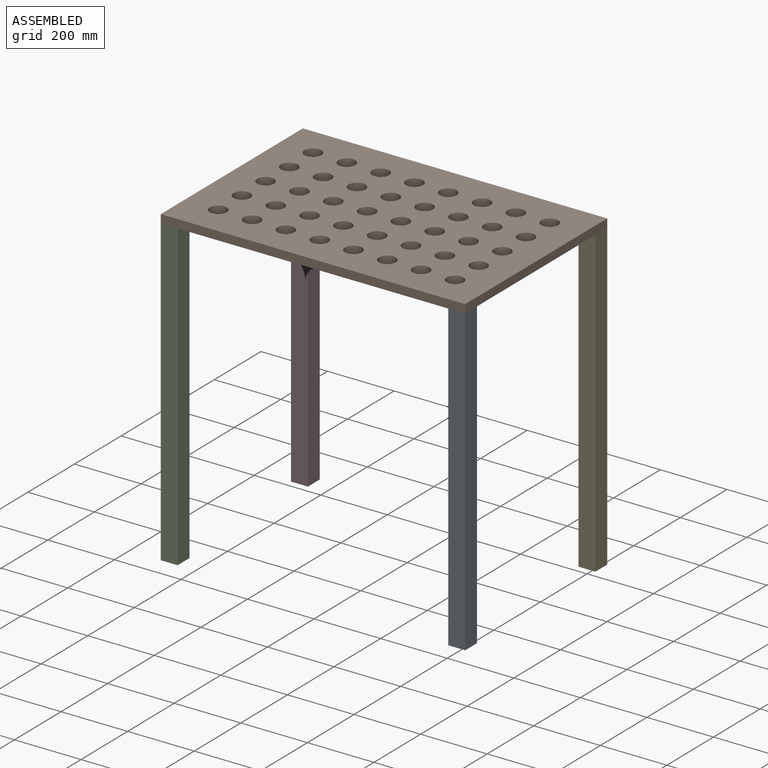
[diagram: assembled view]
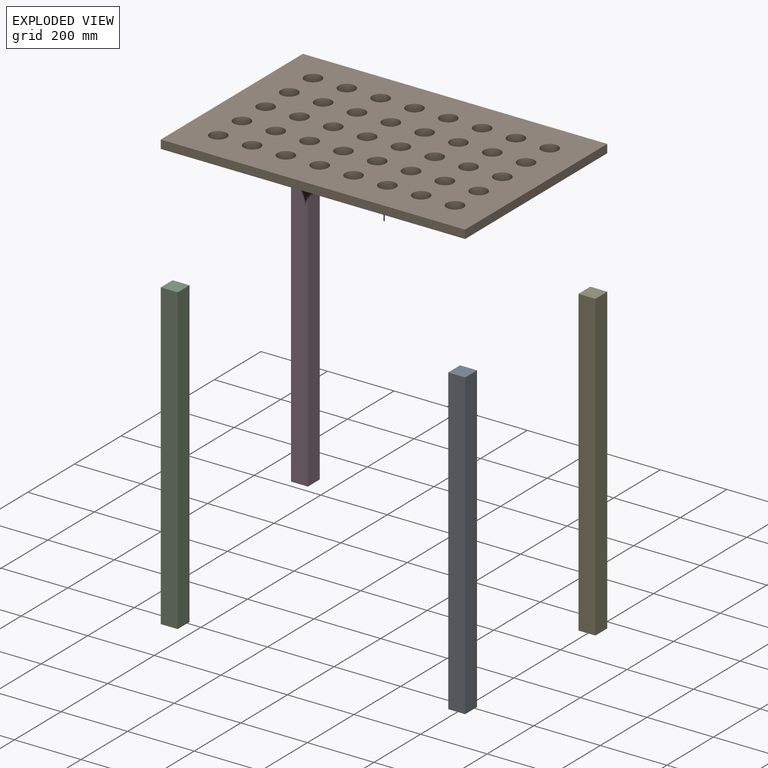
[diagram: exploded view]
GUIDED TOUR — MATED ASSEMBLY (Onshape document d99c5bfcca4524edbeebe9d9, AutoMate assembly d99c5bfcca4524edbeebe9d9_667a4e74a6654eff3f377915_4417dffce7de8047f173473a_default)

This assembly has 5 components, labeled P0..P4 below (a component is one placed occurrence of a part; the same part can appear more than once), held together by 4 mates. A mate is a constraint between two components; its type names the relative motion it leaves free:
  FASTENED — locks the two components together rigidly (no relative motion).
Axis/direction vectors are unit vectors and 'through' points are millimeter coordinates, both in the assembly's world frame.

MATES
  1. FASTENED "Fastened 2": P2 <-> P1, direction (0.000, 0.000, 1.000) through (-264.62, -79.75, 223.32) mm
  2. FASTENED "Fastened 4": P4 <-> P1, direction (0.000, 0.000, 1.000) through (649.78, 529.85, 223.32) mm
  3. FASTENED "Fastened 3": P3 <-> P1, direction (0.000, 0.000, 1.000) through (-264.62, 529.85, 223.32) mm
  4. FASTENED "Fastened 1": P0 <-> P1, direction (0.000, 0.000, 1.000) through (649.78, -79.75, 223.32) mm

ASSEMBLY ORDER
  1. P3 — the base component [order verified]
  2. P2 [order verified]
  3. P0 [order verified]
  4. P4 [order verified]
  5. P1 [order verified]
Order-tag legend:
  [order verified] — this step's position reverses a verified removal order: the component was checked to insert without passing through the ones already placed.

Of the 5 components, 5 carry the full construction recipe — the FeatureScript program that regenerates the part's solid from scratch; the rest are supplied as boundary geometry only.
Each toured component is shown spotlighted twice — in the assembled view, then in the exploded view, where a leader line traces a displaced component back to its assembled socket (saturated green if recipe-attached, orange if geometry-only; every other component desaturated gray) — followed by its recipe or geometry summary and the mates that hold it.
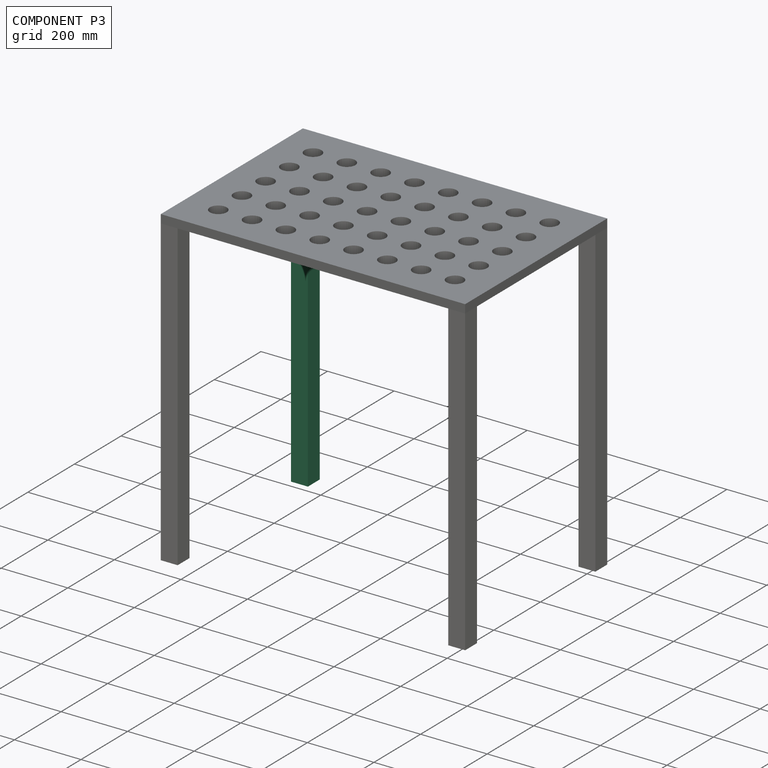
[diagram: component P3 — assembled]
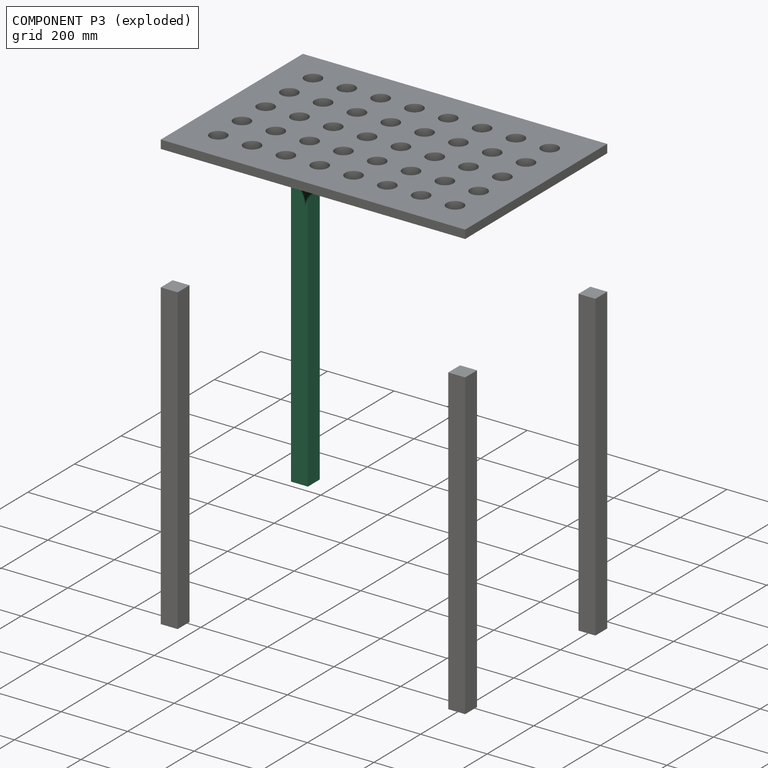
[diagram: component P3 — exploded]
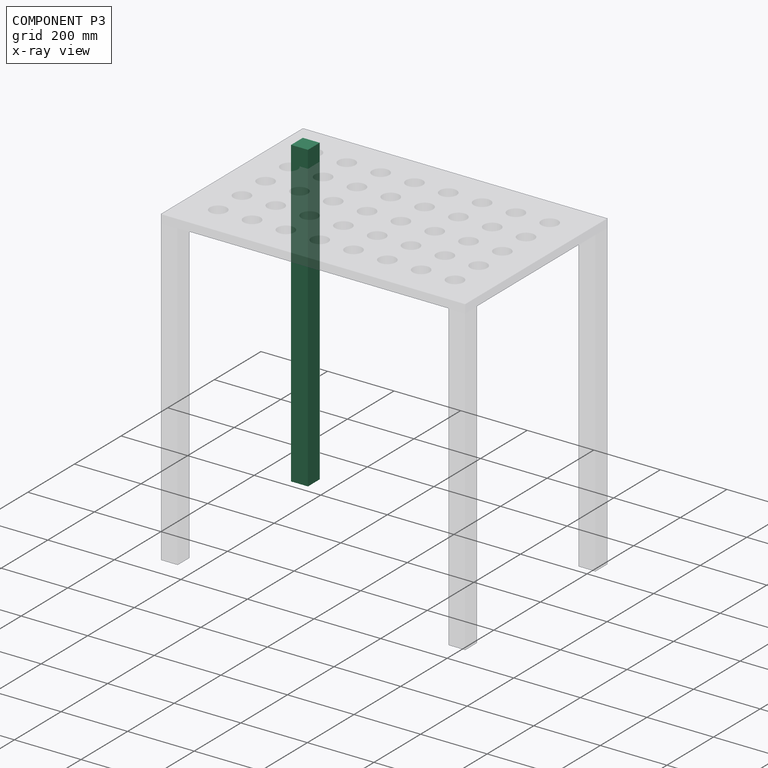
[diagram: component P3 — x-ray view]
COMPONENT P3 — same part as P0 (CADFS 00595427); its construction recipe is shown at P0.
Held by: FASTENED mate "Fastened 3" to P1.
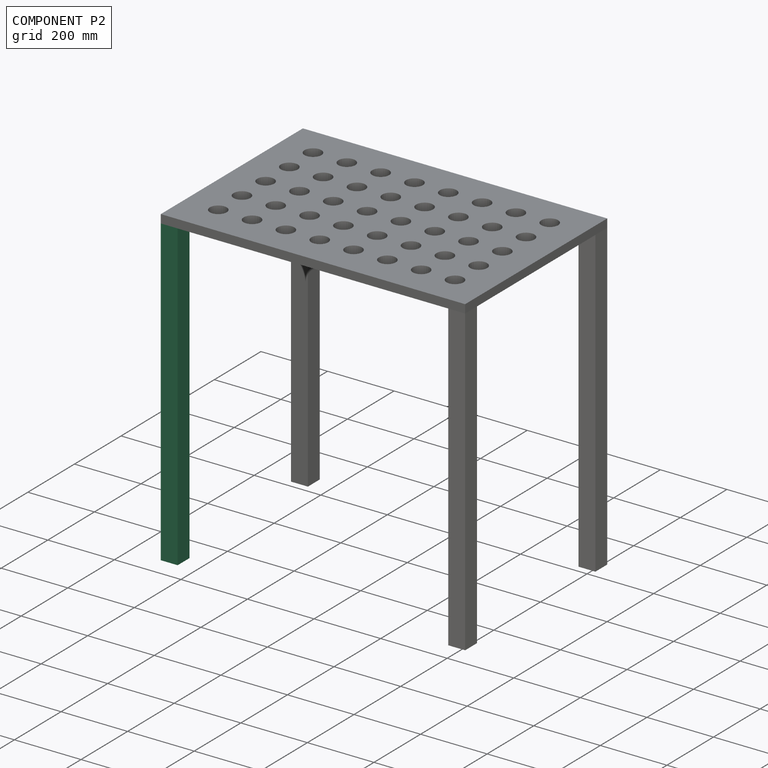
[diagram: component P2 — assembled]
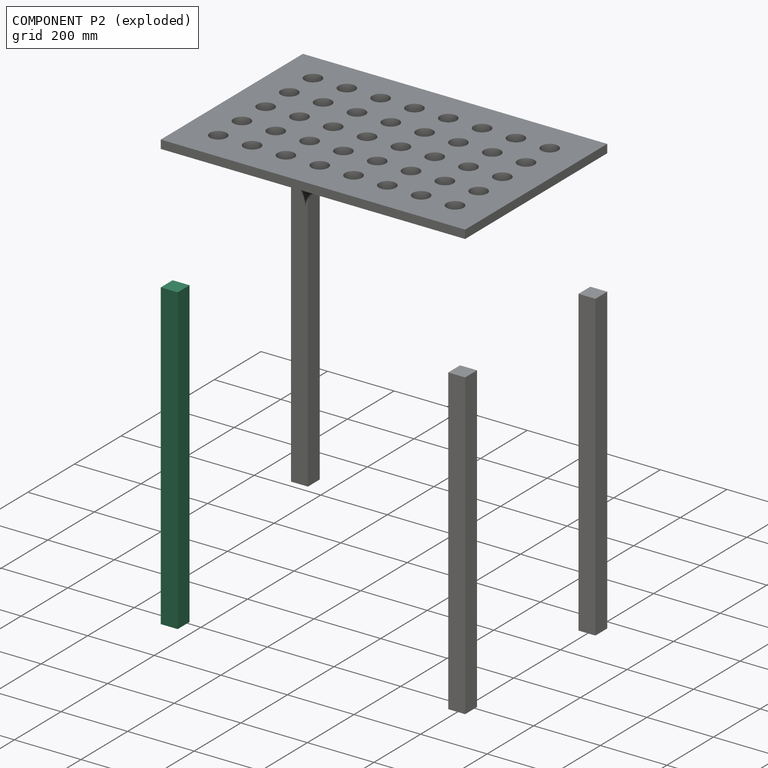
[diagram: component P2 — exploded]
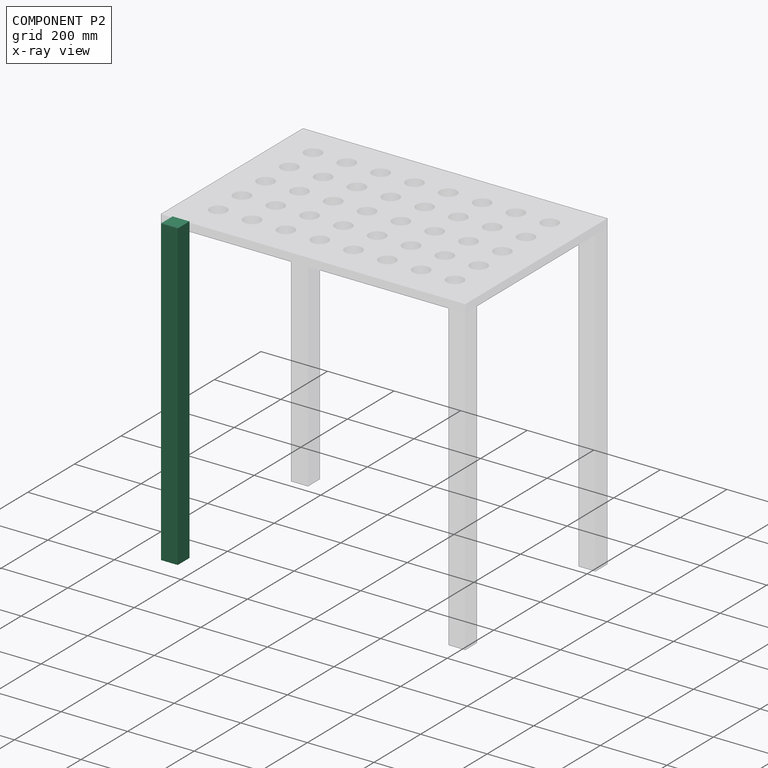
[diagram: component P2 — x-ray view]
COMPONENT P2 — same part as P0 (CADFS 00595427); its construction recipe is shown at P0.
Held by: FASTENED mate "Fastened 2" to P1.
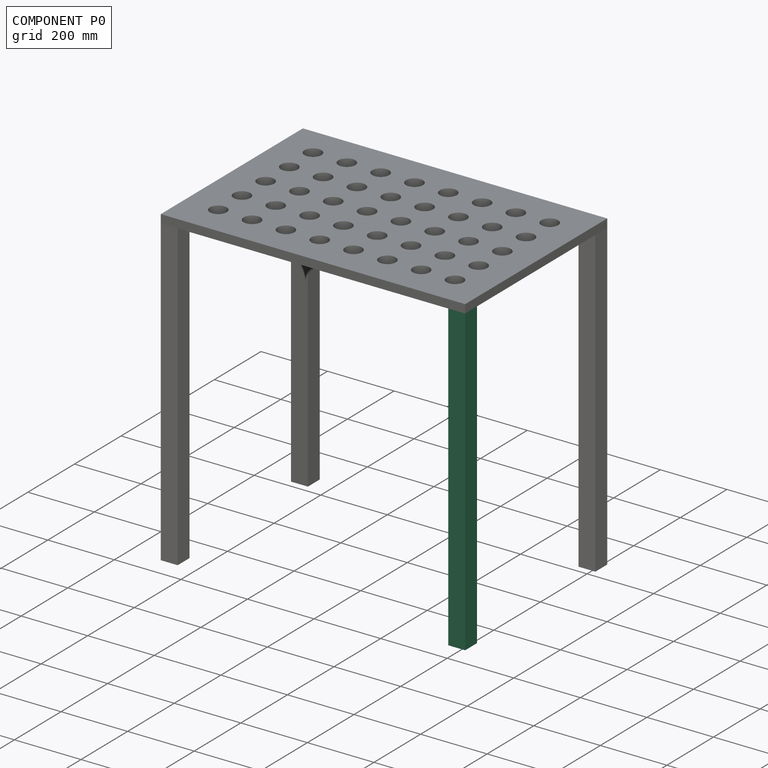
[diagram: component P0 — assembled]
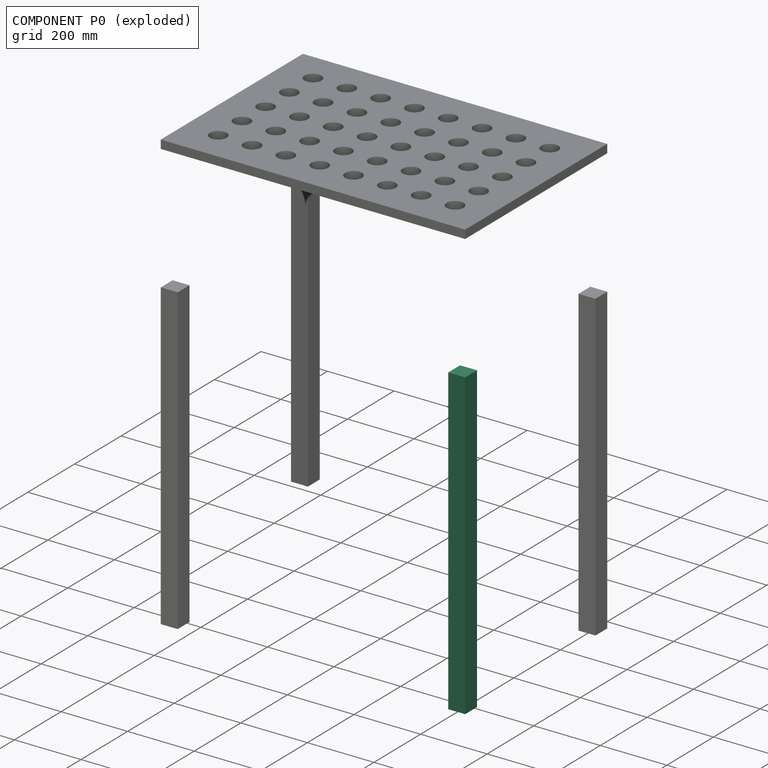
[diagram: component P0 — exploded]
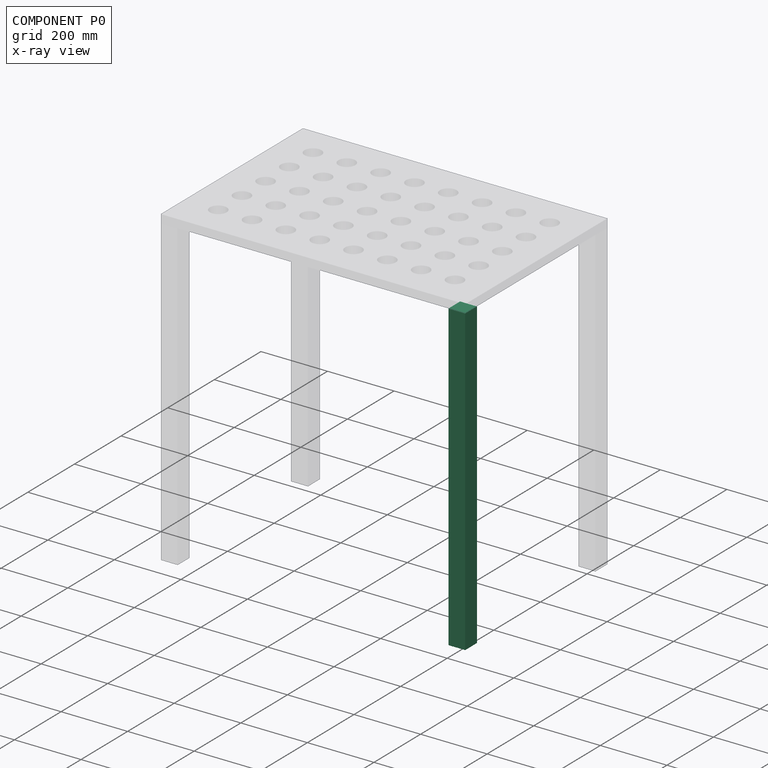
[diagram: component P0 — x-ray view]
COMPONENT P0 — recipe-attached (CADFS 00595427, mesh-verified: the recipe's output STEP matches this component's geometry to below the mesh-comparison resolution (tessellation chordal tolerance ~1.38 mm)).
Held by: FASTENED mate "Fastened 1" to P1.
Construction recipe (FeatureScript — the CAD program that rebuilds this solid; sketch coordinates are in the units given by the * unit suffixes, e.g. mm):

FeatureScript 1511;
import(path : "onshape/std/geometry.fs", version : "1511.0");
import(path : "onshape/std/common.fs", version : "1511.0");
const mm = millimeter;
const VERTEX = EntityType.VERTEX;
const EDGE = EntityType.EDGE;
const FACE = EntityType.FACE;
const BODY = EntityType.BODY;
function v(x, y){return vector(x, y);}
function OD(order){return orderDisambiguation(order);}
function OSD(set){return originalSetDisambiguation(set);}
function TD(topology){return topologyDisambiguation(topology);}
function TDD(query){return trueDependencyDisambiguation(query);}
function sQuery(a, b, c) {return sketchEntityQuery(a, b, c);}

annotation { "Feature Type Name" : "Feature", "Feature Type Description" : "" }
export const myFeature = defineFeature(function(context is Context, id is Id, definition is map)
    precondition{}
    {
        {
            var Q0;
            Q0=qCreatedBy(makeId("Top.planeOp"),FACE);
            var sketch = newSketch(context, id + "F0", { "sketchPlane" : qUnion([Q0])});
            skLineSegment(sketch, "E0.bottom", {"start": v(-203.2, -203.6) * mm, "end": v(-254, -203.6) * mm});
            skLineSegment(sketch, "E0.top", {"start": v(-203.2, -254.4) * mm, "end": v(-254, -254.4) * mm});
            skLineSegment(sketch, "E0.left", {"start": v(-203.2, -203.6) * mm, "end": v(-203.2, -254.4) * mm});
            skLineSegment(sketch, "E0.right", {"start": v(-254, -203.6) * mm, "end": v(-254, -254.4) * mm});
            skSolve(sketch);
        }
        {
            var Q0;
            Q0=makeQuery(id+"F0.imprint","IMPRINT",FACE,{"disambiguationData":[TD([[makeQuery(id+"F0.imprint","IMPRINT",EDGE,{"derivedFrom":sQuery(id+"F0.wireOp",EDGE,"E0.bottom")}),1.0]])]});
            extrude(context, id + "F1", {"entities" : qUnion([Q0]), "depth" : 914.4 * mm, "offsetDistance" : 25.4 * mm});
        }
    });
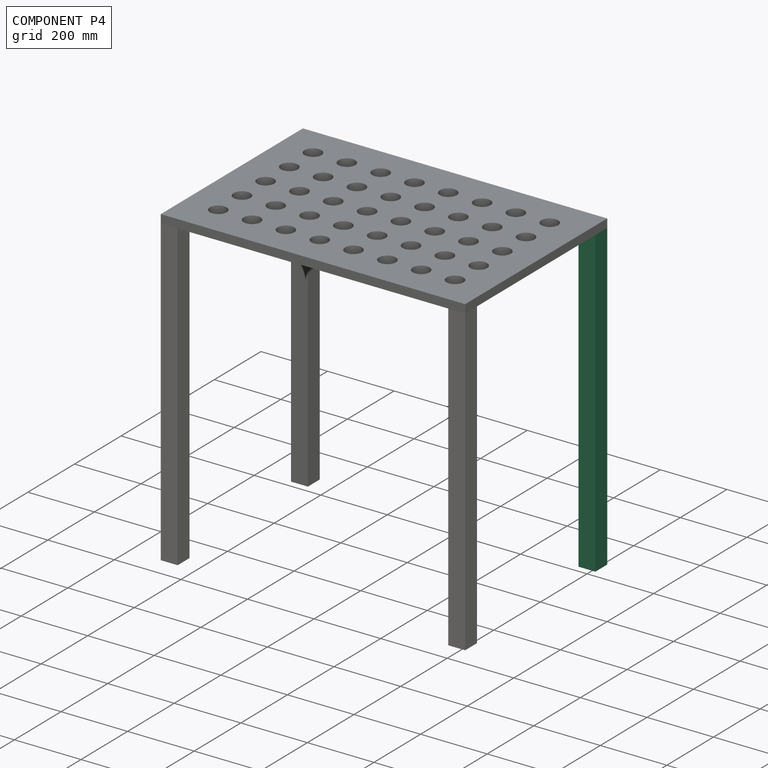
[diagram: component P4 — assembled]
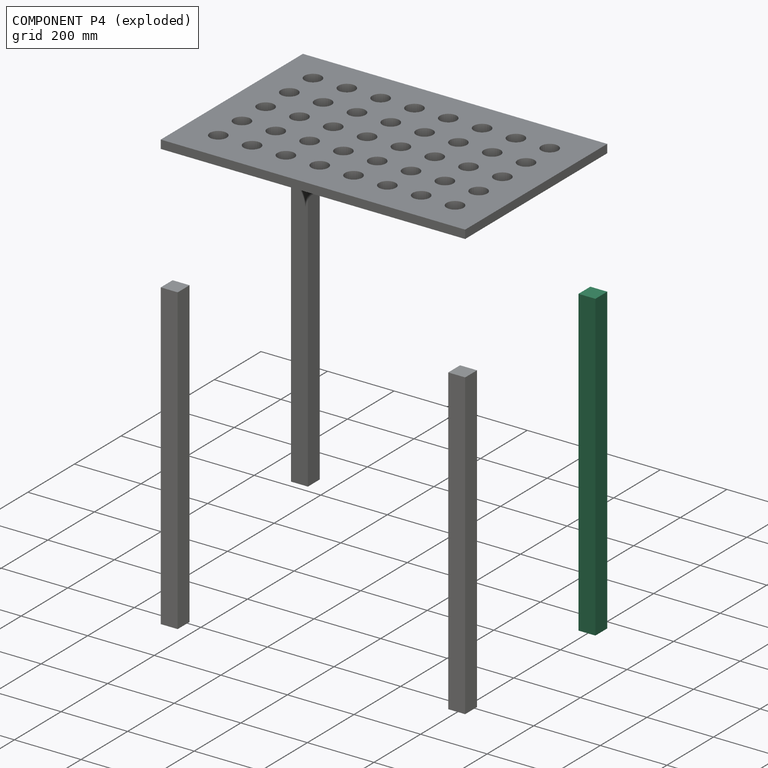
[diagram: component P4 — exploded]
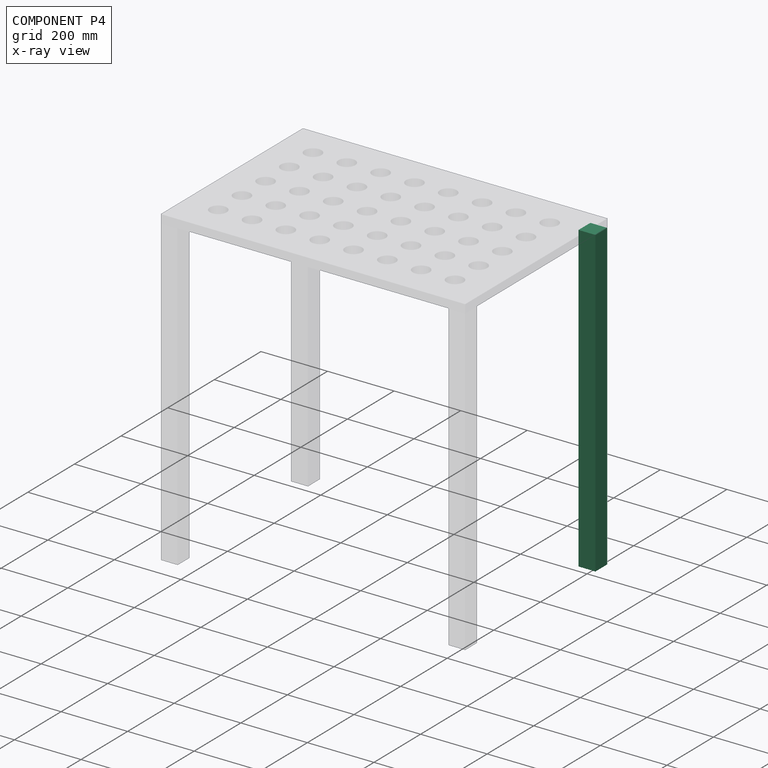
[diagram: component P4 — x-ray view]
COMPONENT P4 — same part as P0 (CADFS 00595427); its construction recipe is shown at P0.
Held by: FASTENED mate "Fastened 4" to P1.
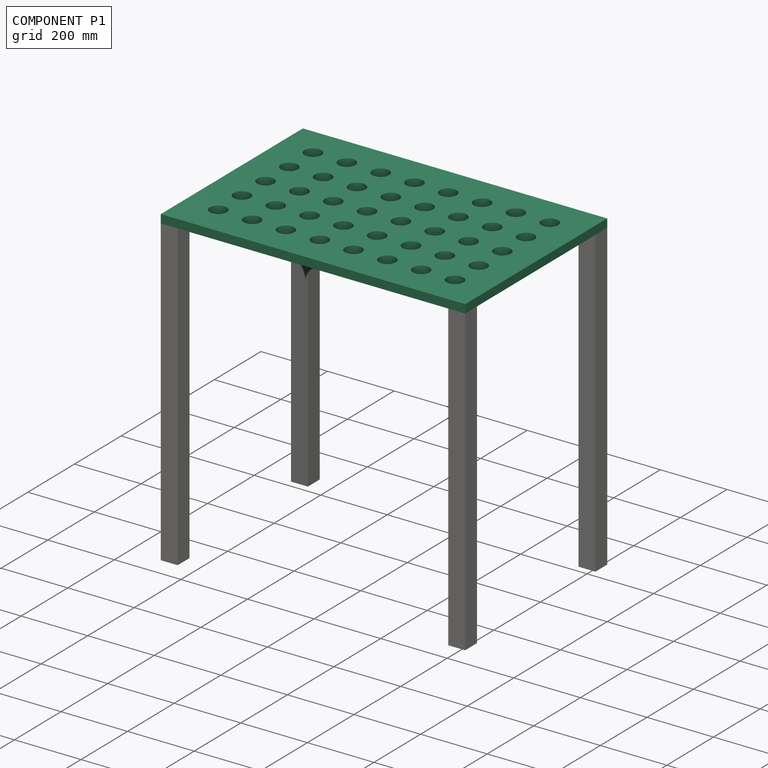
[diagram: component P1 — assembled]
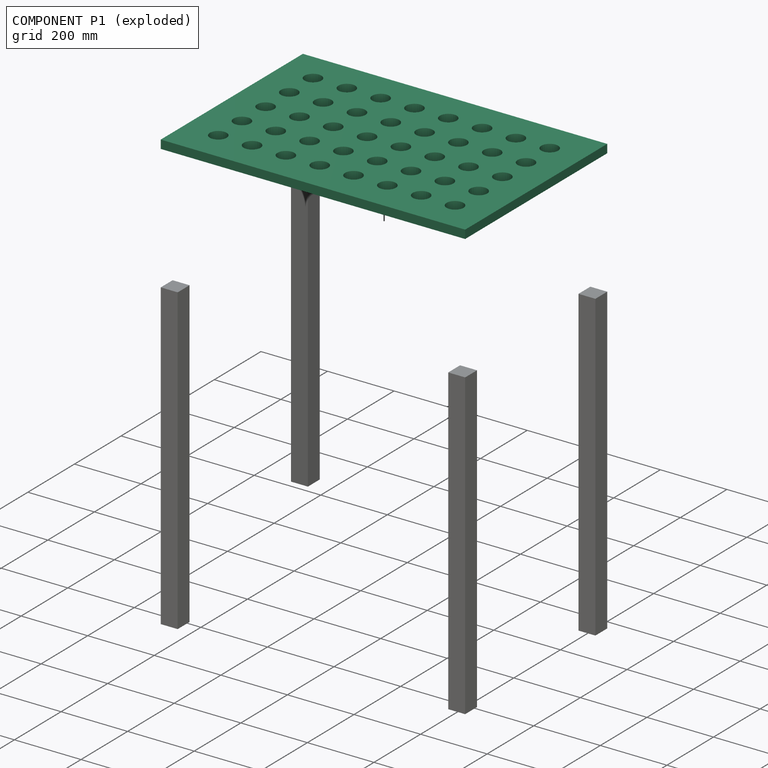
[diagram: component P1 — exploded]
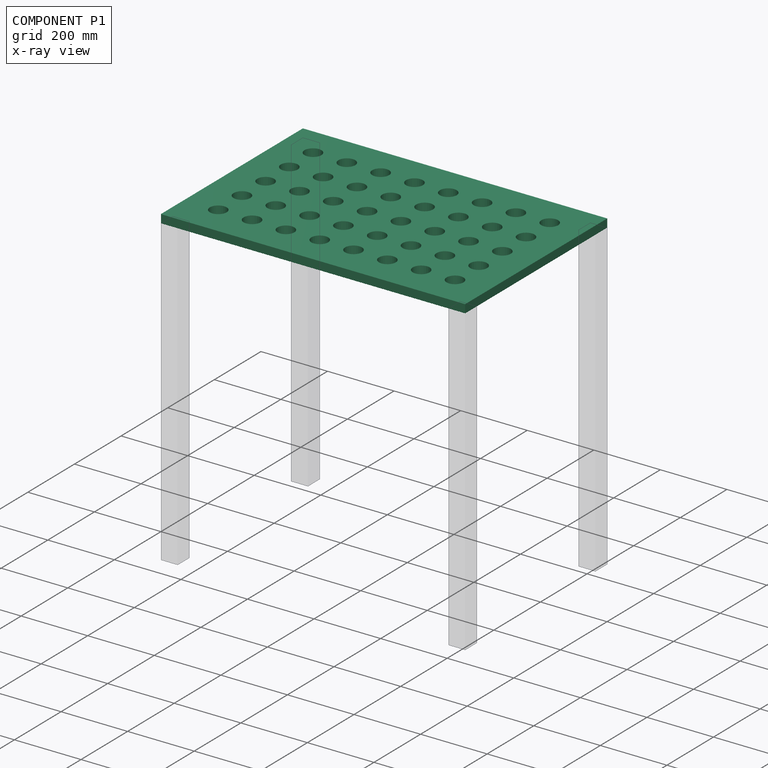
[diagram: component P1 — x-ray view]
COMPONENT P1 — recipe-attached (CADFS 00595426, mesh-verified: the recipe's output STEP matches this component's geometry to below the mesh-comparison resolution (tessellation chordal tolerance ~1.65 mm)).
Held by: FASTENED mate "Fastened 2" to P2; FASTENED mate "Fastened 4" to P4; FASTENED mate "Fastened 3" to P3; FASTENED mate "Fastened 1" to P0.
Construction recipe (FeatureScript — the CAD program that rebuilds this solid; sketch coordinates are in the units given by the * unit suffixes, e.g. mm):

FeatureScript 1511;
import(path : "onshape/std/geometry.fs", version : "1511.0");
import(path : "onshape/std/common.fs", version : "1511.0");
const mm = millimeter;
const VERTEX = EntityType.VERTEX;
const EDGE = EntityType.EDGE;
const FACE = EntityType.FACE;
const BODY = EntityType.BODY;
function v(x, y){return vector(x, y);}
function OD(order){return orderDisambiguation(order);}
function OSD(set){return originalSetDisambiguation(set);}
function TD(topology){return topologyDisambiguation(topology);}
function TDD(query){return trueDependencyDisambiguation(query);}
function sQuery(a, b, c) {return sketchEntityQuery(a, b, c);}

annotation { "Feature Type Name" : "Feature", "Feature Type Description" : "" }
export const myFeature = defineFeature(function(context is Context, id is Id, definition is map)
    precondition{}
    {
        {
            var Q0;
            Q0=qCreatedBy(makeId("Top.planeOp"),FACE);
            var sketch = newSketch(context, id + "F0", { "sketchPlane" : qUnion([Q0])});
            skLineSegment(sketch, "E0.bottom", {"start": v(812.8, 482.96) * mm, "end": v(-101.6, 482.96) * mm});
            skLineSegment(sketch, "E0.top", {"start": v(812.8, -126.64) * mm, "end": v(-101.6, -126.64) * mm});
            skLineSegment(sketch, "E0.left", {"start": v(812.8, 482.96) * mm, "end": v(812.8, -126.64) * mm});
            skLineSegment(sketch, "E0.right", {"start": v(-101.6, 482.96) * mm, "end": v(-101.6, -126.64) * mm});
            skCircle(sketch, "E1", {"center": v(0, 381.36) * mm, "radius": 25.4 * mm});
            skCircle(sketch, "E2", {"center": v(101.6, 381.36) * mm, "radius": 25.4 * mm});
            skCircle(sketch, "E3", {"center": v(203.2, 381.36) * mm, "radius": 25.4 * mm});
            skCircle(sketch, "E4", {"center": v(304.8, 381.36) * mm, "radius": 25.4 * mm});
            skCircle(sketch, "E5", {"center": v(406.4, 381.36) * mm, "radius": 25.4 * mm});
            skCircle(sketch, "E6", {"center": v(508, 381.36) * mm, "radius": 25.4 * mm});
            skCircle(sketch, "E7", {"center": v(609.6, 381.36) * mm, "radius": 25.4 * mm});
            skCircle(sketch, "E8", {"center": v(711.2, 381.36) * mm, "radius": 25.4 * mm});
            skCircle(sketch, "E9", {"center": v(0, 279.76) * mm, "radius": 25.4 * mm});
            skCircle(sketch, "E10", {"center": v(0, 178.16) * mm, "radius": 25.4 * mm});
            skCircle(sketch, "E11", {"center": v(0, 76.56) * mm, "radius": 25.4 * mm});
            skCircle(sketch, "E12", {"center": v(0, -25.04) * mm, "radius": 25.4 * mm});
            skCircle(sketch, "E13", {"center": v(101.6, 279.76) * mm, "radius": 25.4 * mm});
            skCircle(sketch, "E14", {"center": v(101.6, 178.16) * mm, "radius": 25.4 * mm});
            skCircle(sketch, "E15", {"center": v(101.6, 76.56) * mm, "radius": 25.4 * mm});
            skCircle(sketch, "E16", {"center": v(101.6, -25.04) * mm, "radius": 25.4 * mm});
            skCircle(sketch, "E17", {"center": v(203.2, 279.76) * mm, "radius": 25.4 * mm});
            skCircle(sketch, "E18", {"center": v(304.8, 279.76) * mm, "radius": 25.4 * mm});
            skCircle(sketch, "E19", {"center": v(406.4, 279.76) * mm, "radius": 25.4 * mm});
            skCircle(sketch, "E20", {"center": v(508, 279.76) * mm, "radius": 25.4 * mm});
            skCircle(sketch, "E21", {"center": v(609.6, 279.76) * mm, "radius": 25.4 * mm});
            skCircle(sketch, "E22", {"center": v(711.2, 279.76) * mm, "radius": 25.4 * mm});
            skCircle(sketch, "E23", {"center": v(203.2, 178.16) * mm, "radius": 25.4 * mm});
            skCircle(sketch, "E24", {"center": v(304.8, 178.16) * mm, "radius": 25.4 * mm});
            skCircle(sketch, "E25", {"center": v(406.4, 178.16) * mm, "radius": 25.4 * mm});
            skCircle(sketch, "E26", {"center": v(508, 178.16) * mm, "radius": 25.4 * mm});
            skCircle(sketch, "E27", {"center": v(609.6, 178.16) * mm, "radius": 25.4 * mm});
            skCircle(sketch, "E28", {"center": v(711.2, 178.16) * mm, "radius": 25.4 * mm});
            skCircle(sketch, "E29", {"center": v(203.2, 76.56) * mm, "radius": 25.4 * mm});
            skCircle(sketch, "E30", {"center": v(406.4, 76.56) * mm, "radius": 25.4 * mm});
            skCircle(sketch, "E31", {"center": v(508, 76.56) * mm, "radius": 25.4 * mm});
            skCircle(sketch, "E32", {"center": v(609.6, 76.56) * mm, "radius": 25.4 * mm});
            skCircle(sketch, "E33", {"center": v(711.2, 76.56) * mm, "radius": 25.4 * mm});
            skCircle(sketch, "E34", {"center": v(203.2, -25.04) * mm, "radius": 25.4 * mm});
            skCircle(sketch, "E35", {"center": v(406.4, -25.04) * mm, "radius": 25.4 * mm});
            skCircle(sketch, "E36", {"center": v(508, -25.04) * mm, "radius": 25.4 * mm});
            skCircle(sketch, "E37", {"center": v(609.6, -25.04) * mm, "radius": 25.4 * mm});
            skCircle(sketch, "E38", {"center": v(711.2, -25.04) * mm, "radius": 25.4 * mm});
            skCircle(sketch, "E39", {"center": v(304.8, 76.56) * mm, "radius": 25.4 * mm});
            skCircle(sketch, "E40", {"center": v(304.8, -25.04) * mm, "radius": 25.4 * mm});
            skSolve(sketch);
        }
        {
            var Q0;
            Q0=makeQuery(id+"F0.imprint","IMPRINT",FACE,{"disambiguationData":[TD([[makeQuery(id+"F0.imprint","IMPRINT",EDGE,{"derivedFrom":sQuery(id+"F0.wireOp",EDGE,"E0.bottom")}),1.0]])]});
            extrude(context, id + "F1", {"entities" : qUnion([Q0]), "depth" : 25.4 * mm, "offsetDistance" : 25.4 * mm});
        }
    });
PROVENANCE & LICENSES
Assembly (occurrences, transforms, mates, per-part STEP geometry): AutoMate dataset, Zenodo record 7776208, CC0.
Construction recipes: CADFS (HuggingFace VladPyatov/CADFS, CC-BY-4.0, layered over the ABC dataset), FeatureScript reconstruction programs keyed by ABC model id.
Join: ABC meta listings map ABC model id -> Onshape documentId; within a shared document, parts are matched by geometric signature (bounding-box dims + volume at 0.1% relative tolerance, exact B-rep face/solid counts).
Verification: 5 of this assembly's 5 components carry a recipe attachment, and every attachment is mesh-verified: the CADFS STEP and the AutoMate member STEP were compared as meshes in their shared local frame (symmetric sampled-point-to-mesh distance); worst across the 5 attachments: below the mesh-comparison resolution (tessellation chordal tolerance ~1.65 mm) on a 1099 mm part.
Renders: orthographic iso camera (az 35 / el 25); the floor grid conveys scale (grid pitch printed in each image; no ruler). In the exploded view each component is displaced by its stored offset vector: the offsets alone carry the explosion direction (mate normal/axis signs are not orientation cues and do not encode it), and separation distances are assigned per mate-chain, not proportionally to assembly-order depth.
